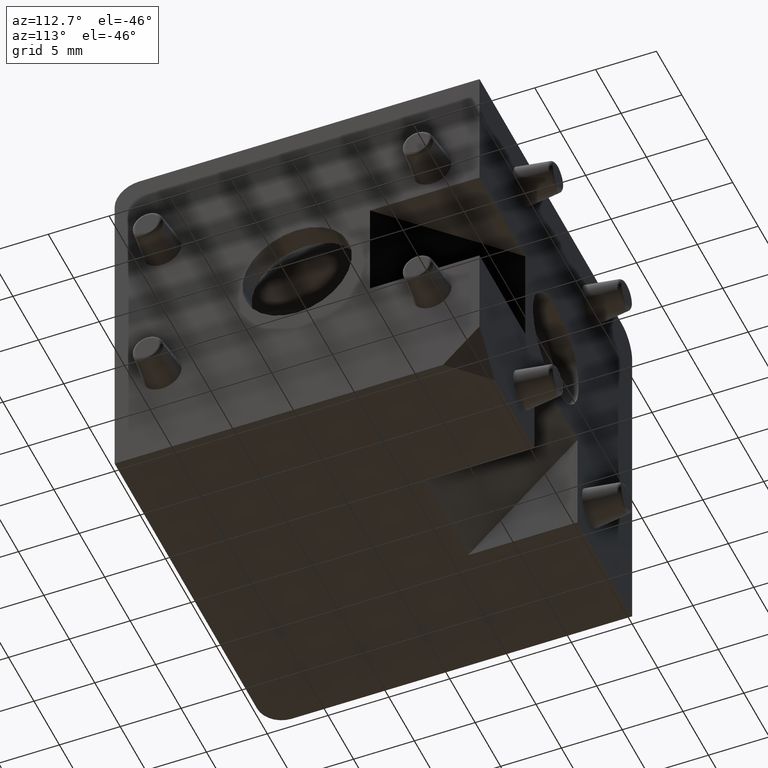
[diagram: clean part render]
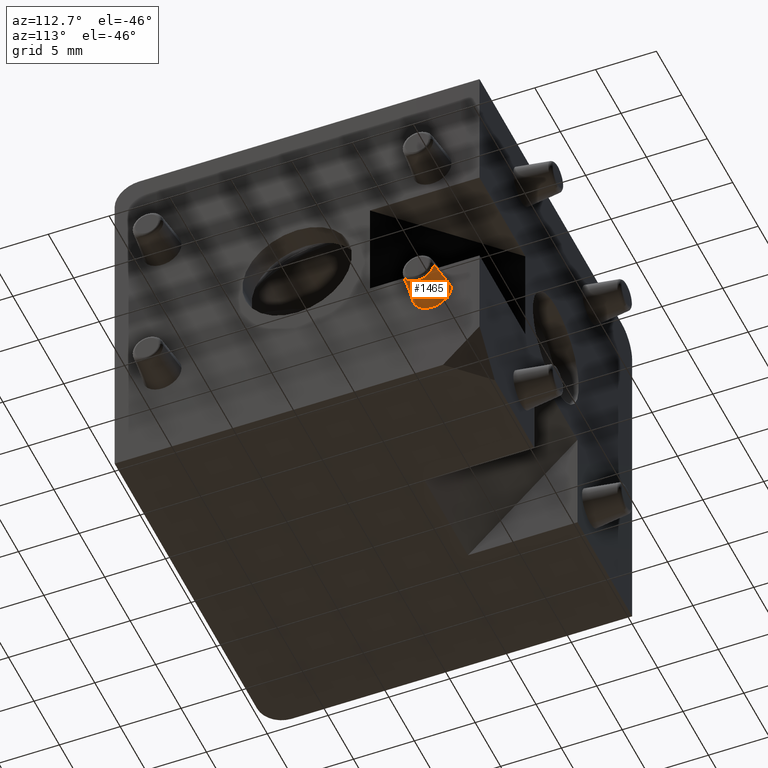
[diagram: same view with one face highlighted and labeled with its STEP entity id]
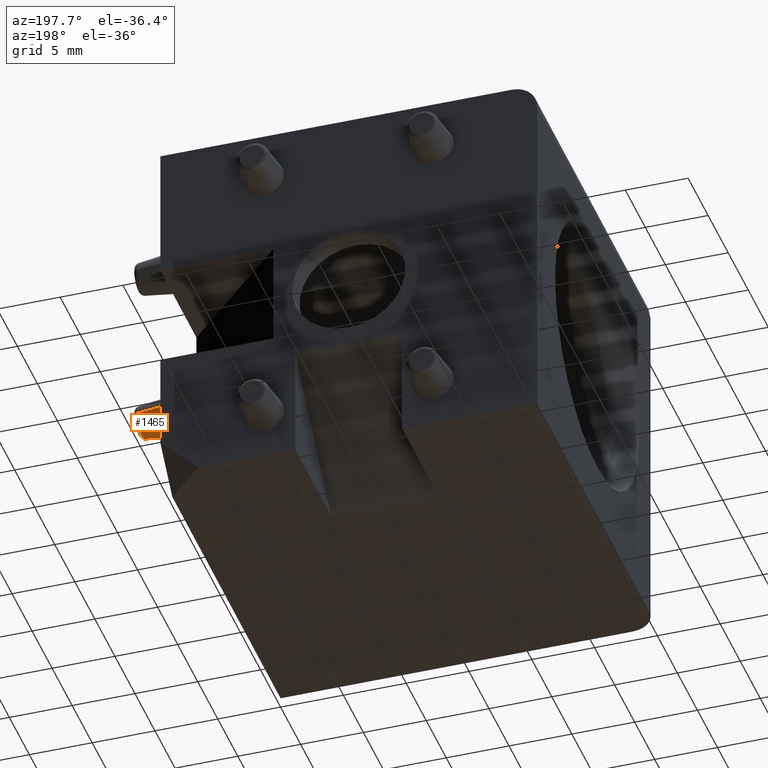
[diagram: same view with one face highlighted and labeled with its STEP entity id]
A machine part, auxiliary view. The second image highlights one B-rep face of the part: STEP entity #1465.
A second angle (auxiliary view) of the same face is appended — the face is thin or edge-on in the first view.
In plain terms, the highlighted conical surface has half-angle 7 deg.
Its self-contained STEP definition (entity closure, byte-faithful):
#92=LINE('',#2731,#160);
#93=LINE('',#2732,#161);
#160=VECTOR('',#2056,2.75711189700976);
#161=VECTOR('',#2057,2.75711189700976);
#308=FACE_OUTER_BOUND('',#416,.T.);
#416=EDGE_LOOP('',(#1162,#1163,#1164,#1165));
#507=CIRCLE('',#1586,1.6);
#561=CIRCLE('',#1658,1.2639925834169);
#657=VERTEX_POINT('',#2595);
#658=VERTEX_POINT('',#2596);
#697=VERTEX_POINT('',#2699);
#698=VERTEX_POINT('',#2700);
#817=EDGE_CURVE('',#658,#657,#507,.T.);
#881=EDGE_CURVE('',#698,#697,#561,.T.);
#882=EDGE_CURVE('',#697,#658,#92,.T.);
#883=EDGE_CURVE('',#698,#657,#93,.T.);
#1162=ORIENTED_EDGE('',*,*,#881,.T.);
#1163=ORIENTED_EDGE('',*,*,#882,.T.);
#1164=ORIENTED_EDGE('',*,*,#817,.T.);
#1165=ORIENTED_EDGE('',*,*,#883,.F.);
#1401=CONICAL_SURFACE('',#1657,1.6,7.00000000000002);
#1465=ADVANCED_FACE('',(#308),#1401,.T.);
#1586=AXIS2_PLACEMENT_3D('',#2598,#1900,#1901);
#1657=AXIS2_PLACEMENT_3D('',#2729,#2052,#2053);
#1658=AXIS2_PLACEMENT_3D('',#2730,#2054,#2055);
#1900=DIRECTION('center_axis',(1.,0.,0.));
#1901=DIRECTION('ref_axis',(0.,-1.,0.));
#2052=DIRECTION('center_axis',(-1.,0.,0.));
#2053=DIRECTION('ref_axis',(0.,1.,0.));
#2054=DIRECTION('center_axis',(-1.,0.,0.));
#2055=DIRECTION('ref_axis',(0.,-1.,0.));
#2056=DIRECTION('',(-0.992546151641322,-0.121869343405148,-1.49246901315304E-17));
#2057=DIRECTION('',(-0.992546151641322,0.121869343405148,0.));
#2595=CARTESIAN_POINT('',(15.,12.7,-6.75));
#2596=CARTESIAN_POINT('',(15.,9.50000000000001,-6.75));
#2598=CARTESIAN_POINT('Origin',(15.,11.1,-6.75));
#2699=CARTESIAN_POINT('',(17.7365608030215,9.83600741658311,-6.75));
#2700=CARTESIAN_POINT('',(17.7365608030215,12.3639925834169,-6.75));
#2729=CARTESIAN_POINT('Origin',(15.,11.1,-6.75));
#2730=CARTESIAN_POINT('Origin',(17.7365608030215,11.1,-6.75));
#2731=CARTESIAN_POINT('',(15.,9.50000000000001,-6.75));
#2732=CARTESIAN_POINT('',(15.,12.7,-6.75));